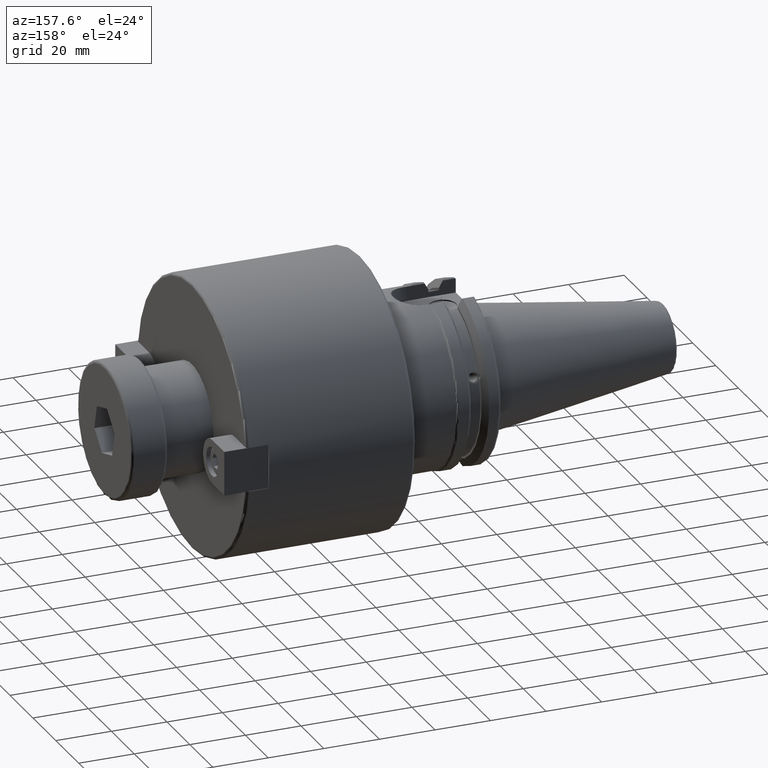
[diagram: clean part render]
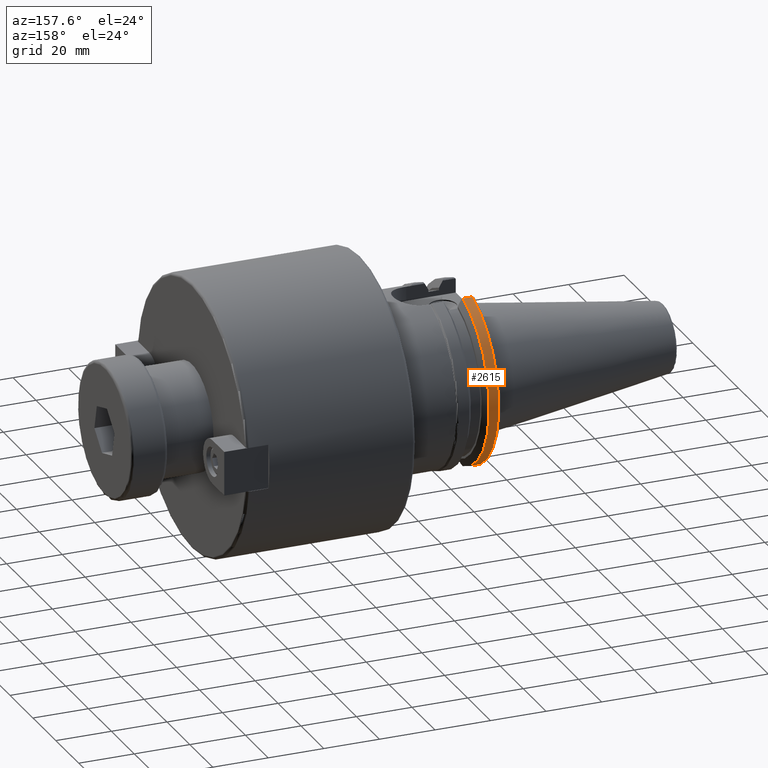
[diagram: same view with one face highlighted and labeled with its STEP entity id]
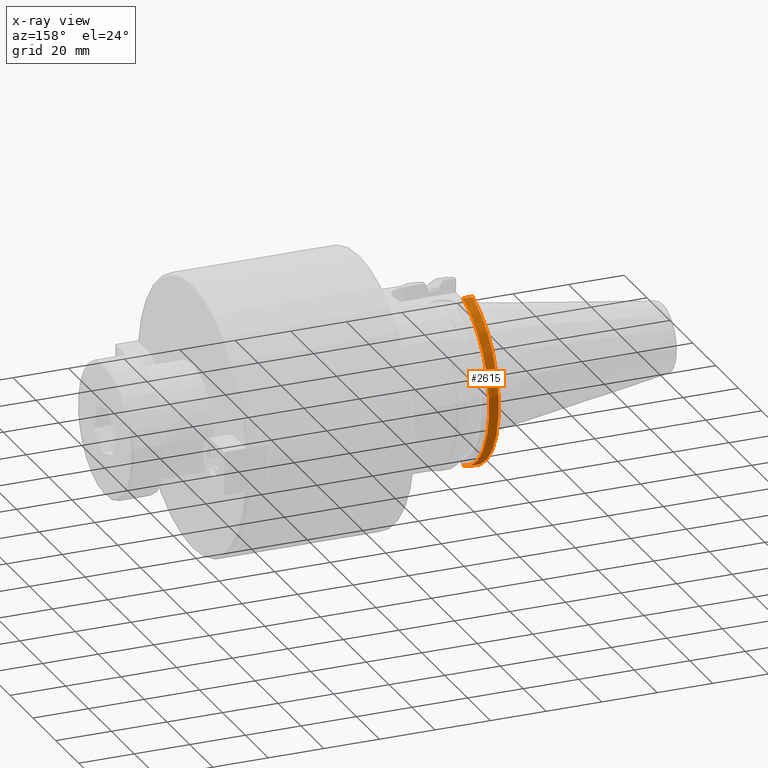
[diagram: x-ray of the same camera — body ghosted, the highlighted face saturated]
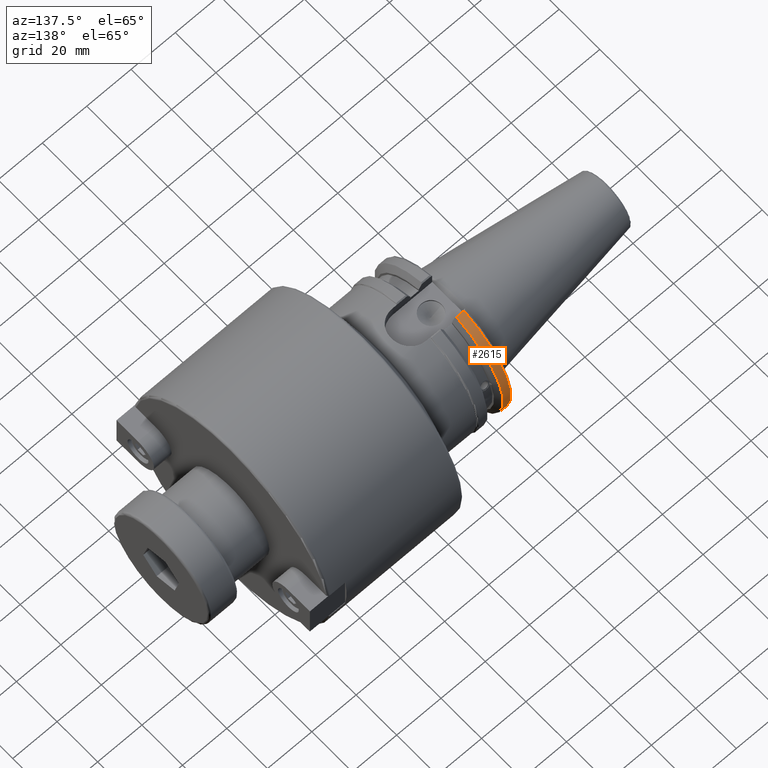
[diagram: same view with one face highlighted and labeled with its STEP entity id]
A machine part, auxiliary view. The second image highlights one B-rep face of the part: STEP entity #2615.
The next image is the same camera in x-ray: the body ghosted, the highlighted face saturated — about 0% of this face is hidden behind the body in this view.
A second angle (auxiliary view) of the same face is appended — the face is thin or edge-on in the first view.
In plain terms, the highlighted cylindrical surface (partial cylindrical patch) has radius 31.75 mm, axis along (1, 0, 0).
Its self-contained STEP definition (entity closure, byte-faithful):
#144=CYLINDRICAL_SURFACE('',#2974,31.75);
#281=CIRCLE('',#2959,31.75);
#288=CIRCLE('',#2975,31.75);
#429=FACE_OUTER_BOUND('',#596,.T.);
#596=EDGE_LOOP('',(#2151,#2152,#2153,#2154));
#767=LINE('',#4823,#930);
#772=LINE('',#4854,#935);
#930=VECTOR('',#3554,10.);
#935=VECTOR('',#3587,10.);
#1210=VERTEX_POINT('',#4802);
#1211=VERTEX_POINT('',#4811);
#1212=VERTEX_POINT('',#4822);
#1218=VERTEX_POINT('',#4853);
#1539=EDGE_CURVE('',#1210,#1211,#281,.T.);
#1541=EDGE_CURVE('',#1211,#1212,#767,.T.);
#1554=EDGE_CURVE('',#1218,#1210,#772,.T.);
#1555=EDGE_CURVE('',#1212,#1218,#288,.T.);
#2151=ORIENTED_EDGE('',*,*,#1539,.F.);
#2152=ORIENTED_EDGE('',*,*,#1554,.F.);
#2153=ORIENTED_EDGE('',*,*,#1555,.F.);
#2154=ORIENTED_EDGE('',*,*,#1541,.F.);
#2615=ADVANCED_FACE('',(#429),#144,.T.);
#2959=AXIS2_PLACEMENT_3D('',#4812,#3550,#3551);
#2974=AXIS2_PLACEMENT_3D('',#4852,#3585,#3586);
#2975=AXIS2_PLACEMENT_3D('',#4855,#3588,#3589);
#3550=DIRECTION('center_axis',(-1.,0.,0.));
#3551=DIRECTION('ref_axis',(0.,1.,1.60812264967664E-16));
#3554=DIRECTION('',(1.,0.,0.));
#3585=DIRECTION('center_axis',(1.,0.,0.));
#3586=DIRECTION('ref_axis',(0.,1.,0.));
#3587=DIRECTION('',(-1.,0.,0.));
#3588=DIRECTION('center_axis',(1.,0.,0.));
#3589=DIRECTION('ref_axis',(0.,0.,-1.));
#4802=CARTESIAN_POINT('',(4.175,8.67204822802685,30.5427254764662));
#4811=CARTESIAN_POINT('',(4.175,8.67204822802685,-30.5427254764662));
#4812=CARTESIAN_POINT('Origin',(4.175,0.,0.));
#4822=CARTESIAN_POINT('',(7.60793323092436,8.67204822802685,-30.5427254764662));
#4823=CARTESIAN_POINT('',(5.39146661546218,8.67204822802685,-30.5427254764662));
#4852=CARTESIAN_POINT('Origin',(5.39146661546218,0.,0.));
#4853=CARTESIAN_POINT('',(7.60793323092436,8.67204822802685,30.5427254764662));
#4854=CARTESIAN_POINT('',(5.39146661546218,8.67204822802685,30.5427254764662));
#4855=CARTESIAN_POINT('Origin',(7.60793323092436,0.,0.));